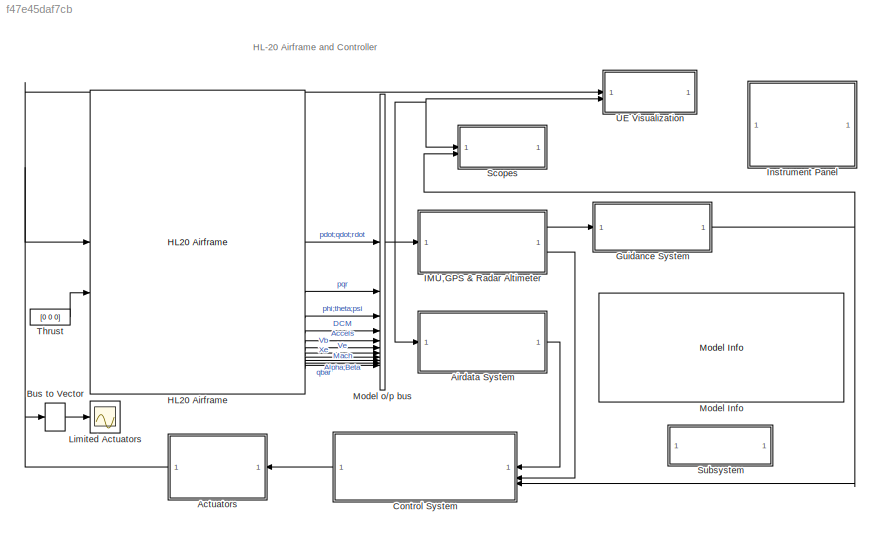
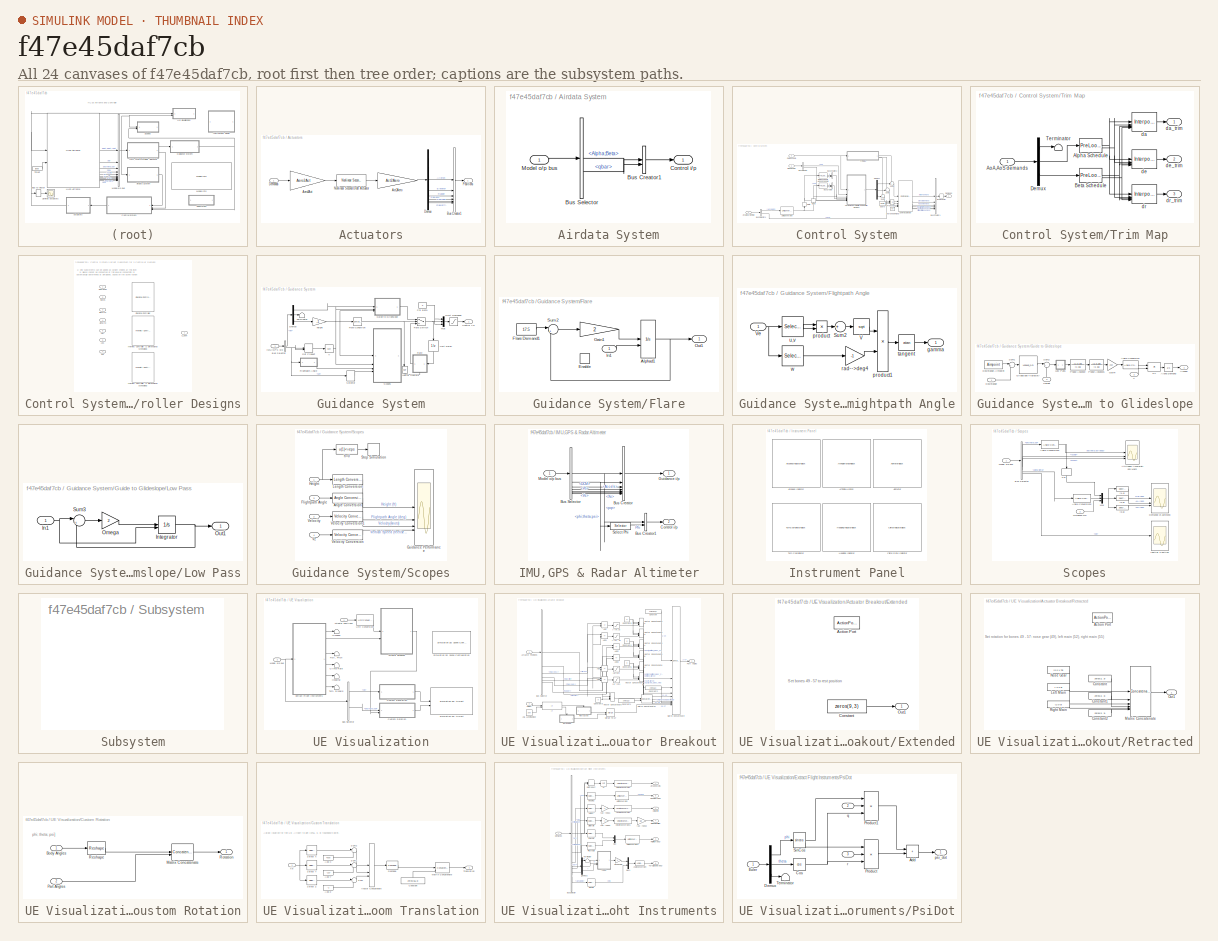
[diagram: thumbnail index - all 24 canvases of the model, root first then tree order]
MODEL slx_f47e45daf7cb
KIND model
CONFIG AbsTol = auto
CONFIG EnableMultiTasking = on
CONFIG FixedStep = auto
CONFIG MaxStep = auto
CONFIG MinStep = auto
CONFIG PreLoadFcn = aeroblk_init_HL20
CONFIG RelTol = 1e-3
CONFIG SampleTimeConstraint = Unconstrained
CONFIG SolverName = ode45
CONFIG StartTime = 0.0
CONFIG StopTime = 70
BLOCK [SubSystem] Actuators
BLOCK [Gain] Actuators/Act2Aero
  Gain = Act2Aero
  Multiplication = Matrix(K*u)
  OutDataTypeStr = Inherit: Same as input
  ParamDataTypeStr = Inherit: Same as input
  SaturateOnIntegerOverflow = on
BLOCK [Gain] Actuators/Aero2Act
  Gain = Aero2Act
  Multiplication = Matrix(K*u)
  OutDataTypeStr = Inherit: Same as input
  ParamDataTypeStr = Inherit: Same as input
  SaturateOnIntegerOverflow = on
BLOCK [BusCreator] Actuators/Bus Creator1
  DisplayOption = bar
  InheritFromInputs = on
  Inputs = 6
BLOCK [Inport] Actuators/Demands
BLOCK [Demux] Actuators/Demux
  DisplayOption = none
  Outputs = 6
BLOCK [Reference] Actuators/Nonlinear Second-Order Actuator  REF=aerolibactuator/Nonlinear Second-Order Actuator
  SourceBlock = aerolibactuator/Nonlinear Second-Order Actuator
  SourceType = NonlinearSecondOrderActuator
BLOCK [Outport] Actuators/Positions
  VectorParamsAs1DForOutWhenUnconnected = off
BLOCK [SubSystem] Airdata System
BLOCK [BusCreator] Airdata System/Bus Creator1
  DisplayOption = bar
  InheritFromInputs = on
  Inputs = 2
BLOCK [BusSelector] Airdata System/Bus Selector
  OutputSignals = Alpha;Beta,qbar
BLOCK [Outport] Airdata System/Control i//p
  VectorParamsAs1DForOutWhenUnconnected = off
BLOCK [Inport] Airdata System/Model o//p bus
BLOCK [BusToVector] Bus to Vector
BLOCK [SubSystem] Control System
BLOCK [Constant] Control System/Airbrake demand
  Value = 0.0
BLOCK [Inport] Control System/Airdata System o//p
BLOCK [Selector] Control System/Alpha
  IndexMode = Zero-based
  IndexOptions = Index vector (dialog)
  Indices = 0
  InputPortWidth = 2
  NameLocation = left
  OutputSizes = 1
BLOCK [PreLookup] Control System/Alpha Schedule
  BeginIndexSearchUsingPreviousIndexResult = on
  BreakpointsData = a_vec
  ExtrapMethod = Linear
  InputPortMap = u0
BLOCK [Selector] Control System/Beta
  IndexMode = Zero-based
  IndexOptions = Index vector (dialog)
  Indices = 1
  InputPortWidth = 2
  NameLocation = left
  OutputSizes = 1
BLOCK [PreLookup] Control System/Beta Schedule
  BeginIndexSearchUsingPreviousIndexResult = on
  BreakpointsData = b_vec
  ExtrapMethod = Linear
  InputPortMap = u0
BLOCK [BusCreator] Control System/Bus Creator
  DisplayOption = bar
  InheritFromInputs = on
  Inputs = 2
BLOCK [BusCreator] Control System/Bus Creator1
  DisplayOption = bar
  InheritFromInputs = on
  Inputs = 6
BLOCK [BusCreator] Control System/Bus Creator2
  DisplayOption = bar
  InheritFromInputs = on
  Inputs = 2
BLOCK [BusSelector] Control System/Bus Selector
  OutputSignals = pqr,Phi
BLOCK [BusSelector] Control System/Bus Selector1
  OutputSignals = Alpha;Beta,qbar
BLOCK [BusToVector] Control System/Bus to Vector
BLOCK [Reference] Control System/Controls Selector  REF=aeroblk_lib_HL20/Controls
Selector
  SourceBlock = aeroblk_lib_HL20/Controls\nSelector
  SourceType = SubSystem
BLOCK [Outport] Control System/Demands
  VectorParamsAs1DForOutWhenUnconnected = off
BLOCK [Demux] Control System/Demux1
  DisplayOption = none
  Outputs = 3
BLOCK [Inport] Control System/Guidance o//p
  Port = 3
BLOCK [Inport] Control System/IMU&GPS o//p
  Port = 2
BLOCK [Product] Control System/Product1
  InputSameDT = on
  Inputs = */
  OutDataTypeStr = Inherit: Same as first input
  SaturateOnIntegerOverflow = on
BLOCK [Sum] Control System/Sum1
  InputSameDT = on
  Inputs = ++|
  OutDataTypeStr = Inherit: Same as first input
  SaturateOnIntegerOverflow = on
BLOCK [Sum] Control System/Sum2
  InputSameDT = on
  Inputs = ++|
  OutDataTypeStr = Inherit: Same as first input
  SaturateOnIntegerOverflow = on
BLOCK [Sum] Control System/Sum3
  InputSameDT = on
  Inputs = ++|
  OutDataTypeStr = Inherit: Same as first input
  SaturateOnIntegerOverflow = on
BLOCK [SubSystem] Control System/Trim Map
BLOCK [PreLookup] Control System/Trim Map/Alpha Schedule
  BeginIndexSearchUsingPreviousIndexResult = on
  BreakpointsData = a_vec
  ExtrapMethod = Linear
  InputPortMap = u0
BLOCK [Inport] Control System/Trim Map/AoA,AoS demands
BLOCK [PreLookup] Control System/Trim Map/Beta Schedule
  BeginIndexSearchUsingPreviousIndexResult = on
  BreakpointsData = b_vec
  ExtrapMethod = Linear
  InputPortMap = u0
BLOCK [Demux] Control System/Trim Map/Demux
  DisplayOption = none
  Outputs = 3
BLOCK [Terminator] Control System/Trim Map/Terminator
BLOCK [Interpolation_n-D] Control System/Trim Map/da
  InputPortMap = u0,u1,u2,u3
  RemoveProtectionIndex = on
  SaturateOnIntegerOverflow = on
  Table = squeeze(U_trim_matrix(1,:,:))
BLOCK [Outport] Control System/Trim Map/da_trim
  VectorParamsAs1DForOutWhenUnconnected = off
BLOCK [Interpolation_n-D] Control System/Trim Map/de
  InputPortMap = u0,u1,u2,u3
  RemoveProtectionIndex = on
  SaturateOnIntegerOverflow = on
  Table = squeeze(U_trim_matrix(2,:,:))
BLOCK [Outport] Control System/Trim Map/de_trim
  Port = 2
  VectorParamsAs1DForOutWhenUnconnected = off
BLOCK [Interpolation_n-D] Control System/Trim Map/dr
  InputPortMap = u0,u1,u2,u3
  RemoveProtectionIndex = on
  SaturateOnIntegerOverflow = on
  Table = squeeze(U_trim_matrix(3,:,:))
BLOCK [Outport] Control System/Trim Map/dr_trim
  Port = 3
  VectorParamsAs1DForOutWhenUnconnected = off
BLOCK [UnitConversion] Control System/Unit Conversion
BLOCK [SubSystem] Control System/Variant Subsystem for 3 Controller Designs
  LabelModeActiveChoice = ClassicalController
  Variant = on
  VariantControlMode = label
BLOCK [Inport] Control System/Variant Subsystem for 3 Controller Designs/Alpha-sc
  Port = 4
BLOCK [Inport] Control System/Variant Subsystem for 3 Controller Designs/AoA
  Port = 5
BLOCK [Inport] Control System/Variant Subsystem for 3 Controller Designs/AoS
  Port = 6
BLOCK [Inport] Control System/Variant Subsystem for 3 Controller Designs/Beta-sc
  Port = 3
BLOCK [Reference] Control System/Variant Subsystem for 3 Controller Designs/Classical Controller  REF=aeroblk_lib_HL20/Classical Controller
  SourceBlock = aeroblk_lib_HL20/Classical Controller
  SourceType = SubSystem
BLOCK [Inport] Control System/Variant Subsystem for 3 Controller Designs/Demands
BLOCK [Reference] Control System/Variant Subsystem for 3 Controller Designs/H-infinity Controller [1 dimensional scheduling]  REF=aeroblk_lib_HL20/H-infinity Controller
[1 dimensional scheduling]
  SourceBlock = aeroblk_lib_HL20/H-infinity Controller\n[1 dimensional scheduling]
  SourceType = SubSystem
BLOCK [Reference] Control System/Variant Subsystem for 3 Controller Designs/H-infinity Controller [2 dimensional scheduling]  REF=aeroblk_lib_HL20/H-infinity Controller
[2 dimensional scheduling]
  SourceBlock = aeroblk_lib_HL20/H-infinity Controller\n[2 dimensional scheduling]
  SourceType = SubSystem
BLOCK [Inport] Control System/Variant Subsystem for 3 Controller Designs/Phi
  Port = 7
BLOCK [Inport] Control System/Variant Subsystem for 3 Controller Designs/Rates
  Port = 2
BLOCK [Outport] Control System/Variant Subsystem for 3 Controller Designs/u_dem
  VectorParamsAs1DForOutWhenUnconnected = off
BLOCK [Constant] Control System/qbar0
  Value = qbar0
BLOCK [SubSystem] Guidance System
BLOCK [BusSelector] Guidance System/Bus Selector
  OutputSignals = Xe,Ve
BLOCK [Outport] Guidance System/Control i//p
  VectorParamsAs1DForOutWhenUnconnected = off
BLOCK [Demux] Guidance System/Demux
  DisplayOption = none
  Outputs = 3
BLOCK [DotProduct] Guidance System/Dot Product
  InputSameDT = off
  OutDataTypeStr = Inherit: Inherit via internal rule
  SaturateOnIntegerOverflow = on
BLOCK [SubSystem] Guidance System/Flare
  NameLocation = top
  ShowPortLabels = none
  TreatAsAtomicUnit = on
BLOCK [Reference] Guidance System/Flare Condition  REF=simulink/Logic and Bit
Operations/Compare
To Constant
  SourceBlock = simulink/Logic and Bit\nOperations/Compare\nTo Constant
  SourceType = Compare To Constant
BLOCK [Switch] Guidance System/Flare Switch
  Threshold = 0.5
BLOCK [Integrator] Guidance System/Flare/Alphad1
  InitialConditionSource = external
BLOCK [EnablePort] Guidance System/Flare/Enable
  StatesWhenEnabling = reset
BLOCK [Constant] Guidance System/Flare/Flare Demand1
  Value = 17.5
BLOCK [Gain] Guidance System/Flare/Gain1
  Gain = 2
  OutDataTypeStr = Inherit: Same as input
  ParamDataTypeStr = Inherit: Same as input
  SaturateOnIntegerOverflow = on
BLOCK [Inport] Guidance System/Flare/In1
BLOCK [Outport] Guidance System/Flare/Out1
  InitialOutput = [0]
  VectorParamsAs1DForOutWhenUnconnected = off
BLOCK [Sum] Guidance System/Flare/Sum2
  InputSameDT = on
  Inputs = |+-
  OutDataTypeStr = Inherit: Same as first input
  SaturateOnIntegerOverflow = on
BLOCK [SubSystem] Guidance System/Flightpath Angle
BLOCK [Sum] Guidance System/Flightpath Angle/Sum2
  InputSameDT = on
  Inputs = +
  OutDataTypeStr = Inherit: Same as first input
  SaturateOnIntegerOverflow = on
BLOCK [Sqrt] Guidance System/Flightpath Angle/V
BLOCK [Inport] Guidance System/Flightpath Angle/Ve
  NameLocation = top
BLOCK [Outport] Guidance System/Flightpath Angle/gamma
  VectorParamsAs1DForOutWhenUnconnected = off
BLOCK [Product] Guidance System/Flightpath Angle/product
  InputSameDT = on
  OutDataTypeStr = Inherit: Same as first input
  SaturateOnIntegerOverflow = on
BLOCK [Product] Guidance System/Flightpath Angle/product1
  InputSameDT = on
  Inputs = /*
  OutDataTypeStr = Inherit: Same as first input
  SaturateOnIntegerOverflow = on
BLOCK [Gain] Guidance System/Flightpath Angle/rad-->deg4
  Gain = -1
  NameLocation = top
  OutDataTypeStr = Inherit: Same as input
  ParamDataTypeStr = Inherit: Same as input
  SaturateOnIntegerOverflow = on
BLOCK [Trigonometry] Guidance System/Flightpath Angle/tangent
  Operator = atan
BLOCK [Selector] Guidance System/Flightpath Angle/u,v
  IndexMode = Zero-based
  IndexOptions = Index vector (dialog)
  Indices = [0 1]
  InputPortWidth = 3
  OutputSizes = 1
BLOCK [Selector] Guidance System/Flightpath Angle/w
  IndexMode = Zero-based
  IndexOptions = Index vector (dialog)
  Indices = 2
  InputPortWidth = 3
  OutputSizes = 1
BLOCK [SubSystem] Guidance System/Guide to Glideslope
BLOCK [Product] Guidance System/Guide to Glideslope/1//V
  InputSameDT = on
  Inputs = */
  OutDataTypeStr = Inherit: Same as first input
  SaturateOnIntegerOverflow = on
BLOCK [Integrator] Guidance System/Guide to Glideslope/Alpha Demand
  InitialCondition = alpha0*180/pi
BLOCK [Outport] Guidance System/Guide to Glideslope/Alphad
  VectorParamsAs1DForOutWhenUnconnected = off
BLOCK [Reference] Guidance System/Guide to Glideslope/Angle Conversion  REF=aerolibconvert2/Angle Conversion
  SourceBlock = aerolibconvert2/Angle Conversion
  SourceType = Angle Conversion
BLOCK [Inport] Guidance System/Guide to Glideslope/Downrange
BLOCK [Constant] Guidance System/Guide to Glideslope/Downrange Aimpoint
  Value = Aimpoint
BLOCK [Gain] Guidance System/Guide to Glideslope/Gain4
  Gain = 210
  OutDataTypeStr = Inherit: Same as input
  ParamDataTypeStr = Inherit: Same as input
  SaturateOnIntegerOverflow = on
BLOCK [Lookup_n-D] Guidance System/Guide to Glideslope/Glideslope Trajectory
  BreakpointsForDimension1 = Xglide
  InputPortMap = u0
  LookupTableObject = ''
  NumberOfTableDimensions = 1
  SaturateOnIntegerOverflow = on
  Table = hglide
BLOCK [Inport] Guidance System/Guide to Glideslope/Height
  Port = 3
BLOCK [SubSystem] Guidance System/Guide to Glideslope/Low Pass
  ShowPortLabels = none
BLOCK [Inport] Guidance System/Guide to Glideslope/Low Pass/In1
BLOCK [Integrator] Guidance System/Guide to Glideslope/Low Pass/Integrator
  InitialConditionSource = external
BLOCK [Gain] Guidance System/Guide to Glideslope/Low Pass/Omega
  Gain = 2
  OutDataTypeStr = Inherit: Same as input
  ParamDataTypeStr = Inherit: Same as input
  SaturateOnIntegerOverflow = on
BLOCK [Outport] Guidance System/Guide to Glideslope/Low Pass/Out1
  VectorParamsAs1DForOutWhenUnconnected = off
BLOCK [Sum] Guidance System/Guide to Glideslope/Low Pass/Sum3
  InputSameDT = on
  Inputs = |+-
  OutDataTypeStr = Inherit: Same as first input
  SaturateOnIntegerOverflow = on
BLOCK [TransferFcn] Guidance System/Guide to Glideslope/Phase Advance
  Denominator = [1 15]
  Numerator = [1 0.15]
BLOCK [TransferFcn] Guidance System/Guide to Glideslope/Phase Advance1
  Denominator = [1 15]
  Numerator = [1 0.15]
BLOCK [Sum] Guidance System/Guide to Glideslope/Sum1
  InputSameDT = on
  Inputs = |+-
  OutDataTypeStr = Inherit: Same as first input
  SaturateOnIntegerOverflow = on
BLOCK [Sum] Guidance System/Guide to Glideslope/Sum2
  InputSameDT = on
  Inputs = |+-
  OutDataTypeStr = Inherit: Same as first input
  SaturateOnIntegerOverflow = on
BLOCK [Inport] Guidance System/Guide to Glideslope/V
  Port = 2
BLOCK [Inport] Guidance System/IMU//GPS o//p
BLOCK [Saturate] Guidance System/Limit Demands
  LowerLimit = [-20 -10 -5]
  UpperLimit = [20 25 5]
BLOCK [Logic] Guidance System/Logical Operator
  Operator = NOT
BLOCK [Mux] Guidance System/Mux
  DisplayOption = bar
  Inputs = 3
BLOCK [Constant] Guidance System/Phi Beta
  Value = 0
BLOCK [SubSystem] Guidance System/Scopes
BLOCK [Reference] Guidance System/Scopes/Angle Conversion  REF=aerolibconvert2/Angle Conversion
  SourceBlock = aerolibconvert2/Angle Conversion
  SourceType = Angle Conversion
BLOCK [Inport] Guidance System/Scopes/Flightpath Angle
  Port = 3
BLOCK [Scope] Guidance System/Scopes/Guidance Performance
  Floating = off
  NumInputPorts = 4
  ScopeSpecificationString = Simulink.scopes.TimeScopeBlockCfg('CurrentConfiguration', extmgr.ConfigurationSet(extmgr.Configuration('Core','General UI',true),extmgr.Configuration('Core','Source UI',true),extmgr.Configuration('Sources','WiredSimulink',true,'DataLoggingVariableName','ScopeData6','DataLoggingDecimation','1','DataLoggingSaveFormat','StructureWithTime'),extmgr.Configuration('Visuals','Time Domain',true,'Serialized...<+3754ch>
BLOCK [Inport] Guidance System/Scopes/Height
BLOCK [Reference] Guidance System/Scopes/Length Conversion  REF=aerolibconvert2/Length Conversion
  SourceBlock = aerolibconvert2/Length Conversion
  SourceType = Length Conversion
BLOCK [Stop] Guidance System/Scopes/Stop Simulation
BLOCK [Inport] Guidance System/Scopes/Velocity
  Port = 2
BLOCK [Reference] Guidance System/Scopes/Velocity Conversion  REF=aerolibconvert2/Velocity Conversion
  SourceBlock = aerolibconvert2/Velocity Conversion
  SourceType = Velocity Conversion
BLOCK [Reference] Guidance System/Scopes/Velocity Conversion1  REF=aerolibconvert2/Velocity Conversion
  SourceBlock = aerolibconvert2/Velocity Conversion
  SourceType = Velocity Conversion
BLOCK [Inport] Guidance System/Scopes/Vz
  Port = 4
BLOCK [Fcn] Guidance System/Scopes/h=0
  Expr = u(1)<=eps
BLOCK [Selector] Guidance System/Selector
  IndexMode = Zero-based
  IndexOptions = Index vector (dialog)
  Indices = 2
  InputPortWidth = 3
  OutputSizes = 1
BLOCK [Terminator] Guidance System/Terminator
BLOCK [UnitDelay] Guidance System/Unit Delay
  HasFrameUpgradeWarning = on
  SampleTime = 0.1
BLOCK [Sqrt] Guidance System/V
BLOCK [Gain] Guidance System/height
  Gain = -1
  OutDataTypeStr = Inherit: Same as input
  ParamDataTypeStr = Inherit: Same as input
  SaturateOnIntegerOverflow = on
BLOCK [Reference] HL20 Airframe  REF=aeroblk_lib_HL20/HL20
Airframe
  SourceBlock = aeroblk_lib_HL20/HL20\nAirframe
BLOCK [SubSystem] IMU,GPS & Radar Altimeter
BLOCK [BusCreator] IMU,GPS & Radar Altimeter/Bus Creator
  DisplayOption = bar
  InheritFromInputs = on
  Inputs = 7
BLOCK [BusCreator] IMU,GPS & Radar Altimeter/Bus Creator1
  DisplayOption = bar
  InheritFromInputs = on
  Inputs = 2
BLOCK [BusSelector] IMU,GPS & Radar Altimeter/Bus Selector
  OutputSignals = pqr,phi;theta;psi,DCM,Accels,Vb,Ve,Xe
BLOCK [Outport] IMU,GPS & Radar Altimeter/Control i//p
  Port = 2
  VectorParamsAs1DForOutWhenUnconnected = off
BLOCK [Outport] IMU,GPS & Radar Altimeter/Guidance i//p
  VectorParamsAs1DForOutWhenUnconnected = off
BLOCK [Inport] IMU,GPS & Radar Altimeter/Model o//p bus
BLOCK [Selector] IMU,GPS & Radar Altimeter/Select Phi
  IndexMode = Zero-based
  IndexOptions = Index vector (dialog)
  Indices = 0
  InputPortWidth = 3
  OutputSizes = 1
BLOCK [SubSystem] Instrument Panel
BLOCK [AirspeedIndicatorBlock] Instrument Panel/Airspeed Indicator
  LabelPosition = Hide
  ScaleMax = 450
  ScaleMin = 0
BLOCK [AltimeterBlock] Instrument Panel/Altimeter
  LabelPosition = Hide
BLOCK [ArtificialHorizonBlock] Instrument Panel/Artificial Horizon
  LabelPosition = Hide
BLOCK [ClimbIndicatorBlock] Instrument Panel/Climb Rate Indicator
  LabelPosition = Hide
  ScaleMax = 16000
BLOCK [HeadingIndicatorBlock] Instrument Panel/Heading Indicator
  LabelPosition = Hide
BLOCK [TurnCoordinatorBlock] Instrument Panel/Turn Coordinator
  LabelPosition = Hide
BLOCK [Scope] Limited Actuators
  Floating = off
  NumInputPorts = 1
  ScopeSpecificationString = Simulink.scopes.TimeScopeBlockCfg('CurrentConfiguration', extmgr.ConfigurationSet(extmgr.Configuration('Core','General UI',true,'MessageLogAutoOpenMode','for warn/fail messages','ShowCloseAll',true,'ShowBringAllForward',true),extmgr.Configuration('Core','Source UI',true,'PlaybackToolbar',true),extmgr.Configuration('Sources','WiredSimulink',true,'PointsPerSignal',50000,'DataLoggingVariableName','Sc...<+2029ch>
BLOCK [Reference] Model Info  REF=simulink/Model-Wide
Utilities/Model Info
  SourceBlock = simulink/Model-Wide\nUtilities/Model Info
  SourceType = CMBlock
BLOCK [BusCreator] Model o//p bus
  DisplayOption = bar
  InheritFromInputs = on
  Inputs = 11
BLOCK [SubSystem] Scopes
BLOCK [Reference] Scopes/Angle Conversion1  REF=aerolibconvert2/Angle Conversion
  SourceBlock = aerolibconvert2/Angle Conversion
  SourceType = Angle Conversion
BLOCK [Reference] Scopes/Angle Conversion2  REF=aerolibconvert2/Angle Conversion
  SourceBlock = aerolibconvert2/Angle Conversion
  SourceType = Angle Conversion
BLOCK [Scope] Scopes/Attitudes Accelerations Mach
  Floating = off
  NumInputPorts = 3
  ScopeSpecificationString = Simulink.scopes.TimeScopeBlockCfg('CurrentConfiguration', extmgr.ConfigurationSet(extmgr.Configuration('Core','General UI',true,'MessageLogAutoOpenMode','for warn/fail messages','ShowCloseAll',true,'ShowBringAllForward',true),extmgr.Configuration('Core','Source UI',true,'PlaybackToolbar',true),extmgr.Configuration('Sources','WiredSimulink',true,'PointsPerSignal',50000,'DataLoggingVariableName','Sc...<+3433ch>
BLOCK [BusSelector] Scopes/Bus Selector
  OutputSignals = phi;theta;psi,Accels,Mach,Alpha;Beta,Xe
BLOCK [Scope] Scopes/Demands vs achieved
  Floating = off
  NumInputPorts = 3
  ScopeSpecificationString = Simulink.scopes.TimeScopeBlockCfg('CurrentConfiguration', extmgr.ConfigurationSet(extmgr.Configuration('Core','General UI',true,'MessageLogAutoOpenMode','for warn/fail messages','ShowCloseAll',true,'ShowBringAllForward',true),extmgr.Configuration('Core','Source UI',true,'PlaybackToolbar',true),extmgr.Configuration('Sources','WiredSimulink',true,'PointsPerSignal',50000,'DataLoggingDecimateData',tru...<+3389ch>
BLOCK [Inport] Scopes/Guidance o//p
  Port = 2
BLOCK [Scope] Scopes/Inertial Position
  Floating = off
  NumInputPorts = 1
  ScopeSpecificationString = Simulink.scopes.TimeScopeBlockCfg('CurrentConfiguration', extmgr.ConfigurationSet(extmgr.Configuration('Core','General UI',true,'MessageLogAutoOpenMode','for warn/fail messages','ShowCloseAll',true,'ShowBringAllForward',true),extmgr.Configuration('Core','Source UI',true,'PlaybackToolbar',true),extmgr.Configuration('Sources','WiredSimulink',true,'PointsPerSignal',50000,'DataLoggingVariableName','Sc...<+2056ch>
BLOCK [Inport] Scopes/Model o//p bus
BLOCK [Mux] Scopes/Mux
  DisplayOption = bar
  Inputs = [1,2,3]
BLOCK [Selector] Scopes/Phi
  IndexMode = Zero-based
  IndexOptions = Index vector (dialog)
  Indices = 0
  InputPortWidth = 3
  NameLocation = left
  OutputSizes = 1
BLOCK [Selector] Scopes/[1,4]
  IndexMode = Zero-based
  IndexOptions = Index vector (dialog)
  Indices = [0 3]
  InputPortWidth = 6
  OutputSizes = 1
BLOCK [Selector] Scopes/[2,5]
  IndexMode = Zero-based
  IndexOptions = Index vector (dialog)
  Indices = [1 4]
  InputPortWidth = 6
  OutputSizes = 1
BLOCK [Selector] Scopes/[3,6]
  IndexMode = Zero-based
  IndexOptions = Index vector (dialog)
  Indices = [2 5]
  InputPortWidth = 6
  OutputSizes = 1
BLOCK [SubSystem] Subsystem
  OpenFcn = aeroblk_lib_HL20
BLOCK [Constant] Thrust
  Value = [0 0 0]
BLOCK [SubSystem] UE Visualization
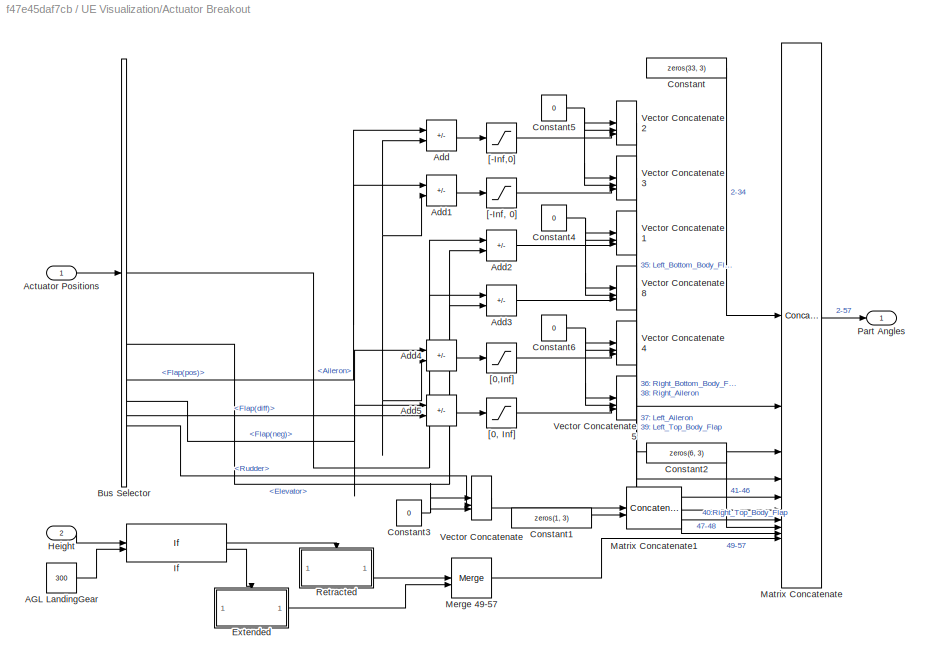
BLOCK [SubSystem] UE Visualization/Actuator Breakout
BLOCK [Constant] UE Visualization/Actuator Breakout/AGL LandingGear
  Value = 300
BLOCK [Inport] UE Visualization/Actuator Breakout/Actuator Positions
  Unit = rad
BLOCK [Sum] UE Visualization/Actuator Breakout/Add
  IconShape = rectangular
  Inputs = --
BLOCK [Sum] UE Visualization/Actuator Breakout/Add1
  IconShape = rectangular
  Inputs = -+
BLOCK [Sum] UE Visualization/Actuator Breakout/Add2
  IconShape = rectangular
  Inputs = --
BLOCK [Sum] UE Visualization/Actuator Breakout/Add3
  IconShape = rectangular
  Inputs = +-
BLOCK [Sum] UE Visualization/Actuator Breakout/Add4
  IconShape = rectangular
  Inputs = --
BLOCK [Sum] UE Visualization/Actuator Breakout/Add5
  IconShape = rectangular
  Inputs = -+
BLOCK [BusSelector] UE Visualization/Actuator Breakout/Bus Selector
  OutputSignals = Aileron,Elevator,Flap(pos),Flap(neg),Flap(diff),Rudder
BLOCK [Constant] UE Visualization/Actuator Breakout/Constant
  Value = zeros(33, 3)
  VectorParams1D = off
BLOCK [Constant] UE Visualization/Actuator Breakout/Constant1
  Value = zeros(1, 3)
  VectorParams1D = off
BLOCK [Constant] UE Visualization/Actuator Breakout/Constant2
  Value = zeros(6, 3)
  VectorParams1D = off
BLOCK [Constant] UE Visualization/Actuator Breakout/Constant3
  Value = 0
BLOCK [Constant] UE Visualization/Actuator Breakout/Constant4
  Value = 0
BLOCK [Constant] UE Visualization/Actuator Breakout/Constant5
  Value = 0
BLOCK [Constant] UE Visualization/Actuator Breakout/Constant6
  Value = 0
BLOCK [SubSystem] UE Visualization/Actuator Breakout/Extended
  TreatAsAtomicUnit = on
BLOCK [ActionPort] UE Visualization/Actuator Breakout/Extended/Action Port
  ActionPortLabel = else
BLOCK [Constant] UE Visualization/Actuator Breakout/Extended/Constant
  Value = zeros(9, 3)
  VectorParams1D = off
BLOCK [Outport] UE Visualization/Actuator Breakout/Extended/Out1
BLOCK [Inport] UE Visualization/Actuator Breakout/Height
  Port = 2
BLOCK [If] UE Visualization/Actuator Breakout/If
  IfExpression = u1 > u2
  NumInputs = 2
BLOCK [Concatenate] UE Visualization/Actuator Breakout/Matrix Concatenate
  Mode = Multidimensional array
  NumInputs = 10
BLOCK [Concatenate] UE Visualization/Actuator Breakout/Matrix Concatenate1
  Mode = Multidimensional array
BLOCK [Merge] UE Visualization/Actuator Breakout/Merge 49-57
  InitialOutput = [0 0 1.75;0 0 0;0 0 0;-2 0 0;0 0 0;0 0 0;2 0 0;0 0 0;0 0 0]
BLOCK [Outport] UE Visualization/Actuator Breakout/Part Angles
BLOCK [SubSystem] UE Visualization/Actuator Breakout/Retracted
  TreatAsAtomicUnit = on
BLOCK [ActionPort] UE Visualization/Actuator Breakout/Retracted/Action Port
  ActionPortLabel = if(u1 > u2)
BLOCK [Constant] UE Visualization/Actuator Breakout/Retracted/Constant
  Value = zeros(2, 3)
  VectorParams1D = off
BLOCK [Constant] UE Visualization/Actuator Breakout/Retracted/Constant1
  Value = zeros(2, 3)
  VectorParams1D = off
BLOCK [Constant] UE Visualization/Actuator Breakout/Retracted/Constant2
  Value = zeros(2, 3)
  VectorParams1D = off
BLOCK [Constant] UE Visualization/Actuator Breakout/Retracted/Left Main
  Value = [-2 0 0]
  VectorParams1D = off
BLOCK [Concatenate] UE Visualization/Actuator Breakout/Retracted/Matrix Concatenate
  Mode = Multidimensional array
  NumInputs = 6
BLOCK [Constant] UE Visualization/Actuator Breakout/Retracted/Nose Gear
  Value = [0 0 1.75]
  VectorParams1D = off
BLOCK [Outport] UE Visualization/Actuator Breakout/Retracted/Out1
BLOCK [Constant] UE Visualization/Actuator Breakout/Retracted/Right Main
  Value = [2 0 0]
  VectorParams1D = off
BLOCK [Concatenate] UE Visualization/Actuator Breakout/Vector Concatenate
  ConcatenateDimension = 2
  Mode = Multidimensional array
  NumInputs = 3
BLOCK [Concatenate] UE Visualization/Actuator Breakout/Vector Concatenate1
  ConcatenateDimension = 2
  Mode = Multidimensional array
  NumInputs = 3
BLOCK [Concatenate] UE Visualization/Actuator Breakout/Vector Concatenate2
  ConcatenateDimension = 2
  Mode = Multidimensional array
  NumInputs = 3
BLOCK [Concatenate] UE Visualization/Actuator Breakout/Vector Concatenate3
  ConcatenateDimension = 2
  Mode = Multidimensional array
  NumInputs = 3
BLOCK [Concatenate] UE Visualization/Actuator Breakout/Vector Concatenate4
  ConcatenateDimension = 2
  Mode = Multidimensional array
  NumInputs = 3
BLOCK [Concatenate] UE Visualization/Actuator Breakout/Vector Concatenate5
  ConcatenateDimension = 2
  Mode = Multidimensional array
  NumInputs = 3
BLOCK [Concatenate] UE Visualization/Actuator Breakout/Vector Concatenate8
  ConcatenateDimension = 2
  Mode = Multidimensional array
  NumInputs = 3
BLOCK [Saturate] UE Visualization/Actuator Breakout/[-Inf, 0]
  LowerLimit = -Inf
  UpperLimit = 0
BLOCK [Saturate] UE Visualization/Actuator Breakout/[-Inf,0]
  LowerLimit = -Inf
  UpperLimit = 0
BLOCK [Saturate] UE Visualization/Actuator Breakout/[0, Inf]
  LowerLimit = 0
  UpperLimit = Inf
BLOCK [Saturate] UE Visualization/Actuator Breakout/[0,Inf]
  LowerLimit = 0
  UpperLimit = Inf
BLOCK [Inport] UE Visualization/Actuator Positions
  Unit = deg
BLOCK [Terminator] UE Visualization/Airspeed
BLOCK [BusSelector] UE Visualization/Bus Selector
  OutputSignals = Xe,phi;theta;psi
BLOCK [Terminator] UE Visualization/Climb Rate
BLOCK [SubSystem] UE Visualization/Custom Rotation
BLOCK [Inport] UE Visualization/Custom Rotation/Body Angles
  PortDimensions = [3, 1]
BLOCK [Concatenate] UE Visualization/Custom Rotation/Matrix Concatenate
  Mode = Multidimensional array
BLOCK [Inport] UE Visualization/Custom Rotation/Part Angles
  Port = 2
BLOCK [Reshape] UE Visualization/Custom Rotation/Reshape
  OutputDimensionality = Row vector (2-D)
BLOCK [Outport] UE Visualization/Custom Rotation/Rotation
BLOCK [SubSystem] UE Visualization/Custom Translation
BLOCK [Constant] UE Visualization/Custom Translation/Add X
  Value = 4500
BLOCK [Constant] UE Visualization/Custom Translation/Add Y
  Value = -22.7
BLOCK [Constant] UE Visualization/Custom Translation/Add Z
  Value = -2
BLOCK [Constant] UE Visualization/Custom Translation/Constant
  NameLocation = right
  Value = zeros(56,3)
BLOCK [Concatenate] UE Visualization/Custom Translation/Matrix Concatenate
  Mode = Multidimensional array
BLOCK [Reshape] UE Visualization/Custom Translation/Reshape
  OutputDimensionality = Row vector (2-D)
BLOCK [Selector] UE Visualization/Custom Translation/Select X
  IndexOptions = Index vector (dialog)
  Indices = 1
  InputPortWidth = 3
  OutputSizes = 1
BLOCK [Selector] UE Visualization/Custom Translation/Select Y
  IndexOptions = Index vector (dialog)
  Indices = 2
  InputPortWidth = 3
  OutputSizes = 1
BLOCK [Selector] UE Visualization/Custom Translation/Select Z
  IndexOptions = Index vector (dialog)
  Indices = 3
  InputPortWidth = 3
  OutputSizes = 1
BLOCK [Sum] UE Visualization/Custom Translation/Sum
  Inputs = |++
BLOCK [Sum] UE Visualization/Custom Translation/Sum1
  Inputs = |++
BLOCK [Sum] UE Visualization/Custom Translation/Sum2
  Inputs = |++
BLOCK [Outport] UE Visualization/Custom Translation/Translation
BLOCK [Concatenate] UE Visualization/Custom Translation/Vector Concatenate
  NumInputs = 3
BLOCK [Inport] UE Visualization/Custom Translation/Xe
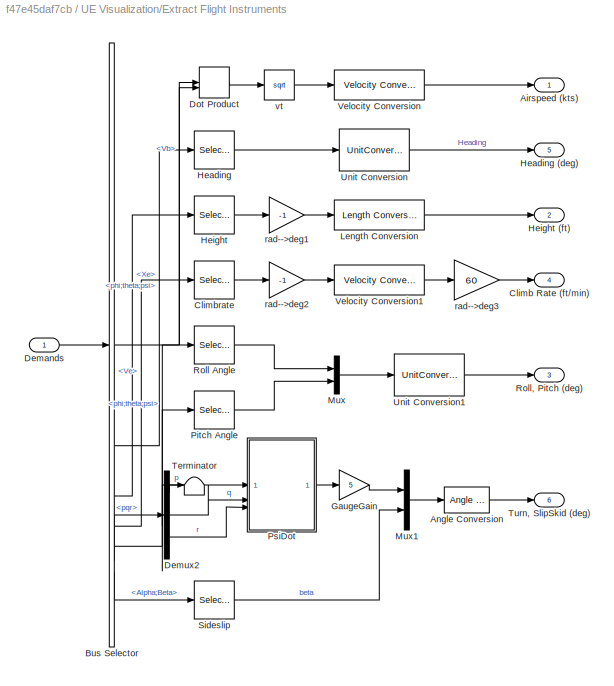
BLOCK [SubSystem] UE Visualization/Extract Flight Instruments
BLOCK [Outport] UE Visualization/Extract Flight Instruments/Airspeed (kts)
  Unit = kn
  VectorParamsAs1DForOutWhenUnconnected = off
BLOCK [Reference] UE Visualization/Extract Flight Instruments/Angle Conversion  REF=aerolibconvert2/Angle Conversion
  SourceBlock = aerolibconvert2/Angle Conversion
  SourceType = Angle Conversion
BLOCK [BusSelector] UE Visualization/Extract Flight Instruments/Bus Selector
  OutputSignals = Vb,phi;theta;psi,Xe,Ve,phi;theta;psi,pqr,Alpha;Beta
BLOCK [Outport] UE Visualization/Extract Flight Instruments/Climb Rate (ft//min)
  Port = 4
  Unit = ft/min
  VectorParamsAs1DForOutWhenUnconnected = off
BLOCK [Selector] UE Visualization/Extract Flight Instruments/Climbrate
  IndexMode = Zero-based
  IndexOptions = Index vector (dialog)
  Indices = 2
  InputPortWidth = 3
  OutputSizes = 1
BLOCK [Inport] UE Visualization/Extract Flight Instruments/Demands
BLOCK [Demux] UE Visualization/Extract Flight Instruments/Demux2
  Outputs = 3
BLOCK [DotProduct] UE Visualization/Extract Flight Instruments/Dot Product
  InputSameDT = off
  OutDataTypeStr = Inherit: Inherit via internal rule
  SaturateOnIntegerOverflow = on
BLOCK [Gain] UE Visualization/Extract Flight Instruments/GaugeGain
  Gain = 5
BLOCK [Selector] UE Visualization/Extract Flight Instruments/Heading
  IndexMode = Zero-based
  IndexOptions = Index vector (dialog)
  Indices = 2
  InputPortWidth = 3
  OutputSizes = 1
BLOCK [Outport] UE Visualization/Extract Flight Instruments/Heading (deg)
  Port = 5
  Unit = deg
  VectorParamsAs1DForOutWhenUnconnected = off
BLOCK [Selector] UE Visualization/Extract Flight Instruments/Height
  IndexMode = Zero-based
  IndexOptions = Index vector (dialog)
  Indices = 2
  InputPortWidth = 3
  OutputSizes = 1
BLOCK [Outport] UE Visualization/Extract Flight Instruments/Height (ft)
  Port = 2
  Unit = ft
  VectorParamsAs1DForOutWhenUnconnected = off
BLOCK [Reference] UE Visualization/Extract Flight Instruments/Length Conversion  REF=aerolibconvert2/Length Conversion
  SourceBlock = aerolibconvert2/Length Conversion
  SourceType = Length Conversion
BLOCK [Mux] UE Visualization/Extract Flight Instruments/Mux
  DisplayOption = bar
  Inputs = 2
BLOCK [Mux] UE Visualization/Extract Flight Instruments/Mux1
  DisplayOption = bar
  Inputs = 2
BLOCK [Selector] UE Visualization/Extract Flight Instruments/Pitch Angle
  IndexMode = Zero-based
  IndexOptions = Index vector (dialog)
  Indices = 1
  InputPortWidth = 3
  OutputSizes = 1
BLOCK [SubSystem] UE Visualization/Extract Flight Instruments/PsiDot
BLOCK [Sum] UE Visualization/Extract Flight Instruments/PsiDot/Add
  IconShape = rectangular
BLOCK [Trigonometry] UE Visualization/Extract Flight Instruments/PsiDot/Cos
  Operator = cos
BLOCK [Demux] UE Visualization/Extract Flight Instruments/PsiDot/Demux
  Outputs = 3
BLOCK [Inport] UE Visualization/Extract Flight Instruments/PsiDot/Euler
BLOCK [Product] UE Visualization/Extract Flight Instruments/PsiDot/Product
  Inputs = **/
BLOCK [Product] UE Visualization/Extract Flight Instruments/PsiDot/Product1
  Inputs = **/
BLOCK [Trigonometry] UE Visualization/Extract Flight Instruments/PsiDot/SinCos
  Operator = sincos
BLOCK [Terminator] UE Visualization/Extract Flight Instruments/PsiDot/Terminator
BLOCK [Outport] UE Visualization/Extract Flight Instruments/PsiDot/psi_dot
BLOCK [Inport] UE Visualization/Extract Flight Instruments/PsiDot/q
  Port = 2
BLOCK [Inport] UE Visualization/Extract Flight Instruments/PsiDot/r
  Port = 3
BLOCK [Selector] UE Visualization/Extract Flight Instruments/Roll Angle
  IndexMode = Zero-based
  IndexOptions = Index vector (dialog)
  Indices = 0
  InputPortWidth = 3
  OutputSizes = 1
BLOCK [Outport] UE Visualization/Extract Flight Instruments/Roll, Pitch (deg)
  Port = 3
  Unit = deg
  VectorParamsAs1DForOutWhenUnconnected = off
BLOCK [Selector] UE Visualization/Extract Flight Instruments/Sideslip
  IndexOptions = Index vector (dialog)
  Indices = 2
  InputPortWidth = 2
  OutputSizes = 1
BLOCK [Terminator] UE Visualization/Extract Flight Instruments/Terminator
BLOCK [Outport] UE Visualization/Extract Flight Instruments/Turn, SlipSkid (deg)
  Port = 6
  Unit = deg
  VectorParamsAs1DForOutWhenUnconnected = off
BLOCK [UnitConversion] UE Visualization/Extract Flight Instruments/Unit Conversion
BLOCK [UnitConversion] UE Visualization/Extract Flight Instruments/Unit Conversion1
BLOCK [Reference] UE Visualization/Extract Flight Instruments/Velocity Conversion  REF=aerolibconvert2/Velocity Conversion
  SourceBlock = aerolibconvert2/Velocity Conversion
  SourceType = Velocity Conversion
BLOCK [Reference] UE Visualization/Extract Flight Instruments/Velocity Conversion1  REF=aerolibconvert2/Velocity Conversion
  SourceBlock = aerolibconvert2/Velocity Conversion
  SourceType = Velocity Conversion
BLOCK [Gain] UE Visualization/Extract Flight Instruments/rad-->deg1
  Gain = -1
  NameLocation = top
  OutDataTypeStr = Inherit: Same as input
  ParamDataTypeStr = Inherit: Same as input
  SaturateOnIntegerOverflow = on
BLOCK [Gain] UE Visualization/Extract Flight Instruments/rad-->deg2
  Gain = -1
  NameLocation = top
  OutDataTypeStr = Inherit: Same as input
  ParamDataTypeStr = Inherit: Same as input
  SaturateOnIntegerOverflow = on
BLOCK [Gain] UE Visualization/Extract Flight Instruments/rad-->deg3
  Gain = 60
  NameLocation = top
  OutDataTypeStr = Inherit: Same as input
  ParamDataTypeStr = Inherit: Same as input
  SaturateOnIntegerOverflow = on
BLOCK [Sqrt] UE Visualization/Extract Flight Instruments/vt
BLOCK [Terminator] UE Visualization/Heading
BLOCK [Inport] UE Visualization/Model o//p bus
  Port = 2
BLOCK [Terminator] UE Visualization/Roll, Pitch
BLOCK [Reference] UE Visualization/Simulation 3D Aircraft  REF=aerolibsim3d/Simulation 3D Aircraft
  Priority = -1
  SourceBlock = aerolibsim3d/Simulation 3D Aircraft
  SourceType = Simulation 3D Aircraft
BLOCK [Reference] UE Visualization/Simulation 3D Scene Configuration  REF=sim3dlib/Simulation 3D Scene Configuration
  LibrarySourceBlock = aerolibsim3d/Simulation 3D Scene Configuration
  Priority = 0
  SourceBlock = sim3dlib/Simulation 3D Scene Configuration
  SourceType = Simulation 3D Scene Configuration
BLOCK [Terminator] UE Visualization/Turn, SlipSkid
BLOCK [UnitConversion] UE Visualization/Unit Conversion
ANNOTATION (root): HL-20 Airframe and Controller
ANNOTATION Control System/Variant Subsystem for 3 Controller Designs: 1) Only subsystems can be added as variant choices at this level 2) Blocks cannot be connected at this level as connectivity is automatically determined at simulation, based on the active variant
ANNOTATION UE Visualization/Actuator Breakout/Extended: Set bones 49 - 57 to rest position
ANNOTATION UE Visualization/Actuator Breakout/Retracted: Set rotation for bones 49 - 57: nose gear (49), left main (52), right main (55)
ANNOTATION UE Visualization/Custom Rotation: phi; theta; psi]
ANNOTATION UE Visualization/Custom Translation: Adjust location for the UE Airport to get [3761, 0, 0] touchdown point.
LINE Actuators/Act2Aero:1 -> Actuators/Demux:1
LINE Actuators/Aero2Act:1 -> Actuators/Nonlinear Second-Order Actuator:1
LINE Actuators/Bus Creator1:1 -> Actuators/Positions:1
LINE Actuators/Demands:1 -> Actuators/Aero2Act:1
LINE Actuators/Demux:1 -> Actuators/Bus Creator1:1
LINE Actuators/Demux:2 -> Actuators/Bus Creator1:2
LINE Actuators/Demux:3 -> Actuators/Bus Creator1:3
LINE Actuators/Demux:4 -> Actuators/Bus Creator1:4
LINE Actuators/Demux:5 -> Actuators/Bus Creator1:5
LINE Actuators/Demux:6 -> Actuators/Bus Creator1:6
LINE Actuators/Nonlinear Second-Order Actuator:1 -> Actuators/Act2Aero:1
NET Actuators:1 -> Bus to Vector:1, HL20 Airframe:1, UE Visualization:1
LINE Airdata System/Bus Creator1:1 -> Airdata System/Control i//p:1
LINE Airdata System/Bus Selector:1 -> Airdata System/Bus Creator1:1
LINE Airdata System/Bus Selector:2 -> Airdata System/Bus Creator1:2
LINE Airdata System/Model o//p bus:1 -> Airdata System/Bus Selector:1
LINE Airdata System:1 -> Control System:1
LINE Bus to Vector:1 -> Limited Actuators:1
LINE Control System/Airbrake demand:1 -> Control System/Controls Selector:5
LINE Control System/Airdata System o//p:1 -> Control System/Bus Selector1:1
LINE Control System/Alpha Schedule:1 -> Control System/Bus Creator:1
LINE Control System/Alpha Schedule:2 -> Control System/Bus Creator:2
NET Control System/Alpha:1 -> Control System/Alpha Schedule:1, Control System/Variant Subsystem for 3 Controller Designs:5
LINE Control System/Beta Schedule:1 -> Control System/Bus Creator2:1
LINE Control System/Beta Schedule:2 -> Control System/Bus Creator2:2
NET Control System/Beta:1 -> Control System/Beta Schedule:1, Control System/Variant Subsystem for 3 Controller Designs:6
LINE Control System/Bus Creator1:1 -> Control System/Bus to Vector:1
LINE Control System/Bus Creator2:1 -> Control System/Variant Subsystem for 3 Controller Designs:3
LINE Control System/Bus Creator:1 -> Control System/Variant Subsystem for 3 Controller Designs:4
LINE Control System/Bus Selector1:1 -> Control System/Unit Conversion:1
LINE Control System/Bus Selector1:2 -> Control System/Product1:1
LINE Control System/Bus Selector:1 -> Control System/Variant Subsystem for 3 Controller Designs:2
LINE Control System/Bus Selector:2 -> Control System/Variant Subsystem for 3 Controller Designs:7
LINE Control System/Bus to Vector:1 -> Control System/Demands:1
LINE Control System/Controls Selector:1 -> Control System/Bus Creator1:1
LINE Control System/Controls Selector:2 -> Control System/Bus Creator1:2
LINE Control System/Controls Selector:3 -> Control System/Bus Creator1:3
LINE Control System/Controls Selector:4 -> Control System/Bus Creator1:4
LINE Control System/Controls Selector:5 -> Control System/Bus Creator1:5
LINE Control System/Controls Selector:6 -> Control System/Bus Creator1:6
LINE Control System/Demux1:1 -> Control System/Sum2:2
LINE Control System/Demux1:2 -> Control System/Sum1:2
LINE Control System/Demux1:3 -> Control System/Sum3:2
NET Control System/Guidance o//p:1 -> Control System/Trim Map:1, Control System/Variant Subsystem for 3 Controller Designs:1
LINE Control System/IMU&GPS o//p:1 -> Control System/Bus Selector:1
LINE Control System/Product1:1 -> Control System/Controls Selector:4
LINE Control System/Sum1:1 -> Control System/Controls Selector:2
LINE Control System/Sum2:1 -> Control System/Controls Selector:1
LINE Control System/Sum3:1 -> Control System/Controls Selector:3
NET Control System/Trim Map/Alpha Schedule:1 -> Control System/Trim Map/da:1, Control System/Trim Map/de:1, Control System/Trim Map/dr:1
NET Control System/Trim Map/Alpha Schedule:2 -> Control System/Trim Map/da:2, Control System/Trim Map/de:2, Control System/Trim Map/dr:2
LINE Control System/Trim Map/AoA,AoS demands:1 -> Control System/Trim Map/Demux:1
NET Control System/Trim Map/Beta Schedule:1 -> Control System/Trim Map/da:3, Control System/Trim Map/de:3, Control System/Trim Map/dr:3
NET Control System/Trim Map/Beta Schedule:2 -> Control System/Trim Map/da:4, Control System/Trim Map/de:4, Control System/Trim Map/dr:4
LINE Control System/Trim Map/Demux:1 -> Control System/Trim Map/Terminator:1
LINE Control System/Trim Map/Demux:2 -> Control System/Trim Map/Alpha Schedule:1
LINE Control System/Trim Map/Demux:3 -> Control System/Trim Map/Beta Schedule:1
LINE Control System/Trim Map/da:1 -> Control System/Trim Map/da_trim:1
LINE Control System/Trim Map/de:1 -> Control System/Trim Map/de_trim:1
LINE Control System/Trim Map/dr:1 -> Control System/Trim Map/dr_trim:1
LINE Control System/Trim Map:1 -> Control System/Sum2:1
LINE Control System/Trim Map:2 -> Control System/Sum1:1
LINE Control System/Trim Map:3 -> Control System/Sum3:1
NET Control System/Unit Conversion:1 -> Control System/Alpha:1, Control System/Beta:1
LINE Control System/Variant Subsystem for 3 Controller Designs:1 -> Control System/Demux1:1
LINE Control System/qbar0:1 -> Control System/Product1:2
LINE Control System:1 -> Actuators:1
LINE Guidance System/Bus Selector:1 -> Guidance System/Demux:1
NET Guidance System/Bus Selector:2 -> Guidance System/Dot Product:1, Guidance System/Dot Product:2, Guidance System/Flightpath Angle:1, Guidance System/Selector:1
LINE Guidance System/Demux:1 -> Guidance System/Guide to Glideslope:1
LINE Guidance System/Demux:2 -> Guidance System/Terminator:1
LINE Guidance System/Demux:3 -> Guidance System/height:1
LINE Guidance System/Dot Product:1 -> Guidance System/V:1
NET Guidance System/Flare Condition:1 -> Guidance System/Flare Switch:2, Guidance System/Logical Operator:1
NET Guidance System/Flare Switch:1 -> Guidance System/Mux:2, Guidance System/Unit Delay:1
NET Guidance System/Flare/Alphad1:1 -> Guidance System/Flare/Out1:1, Guidance System/Flare/Sum2:2
LINE Guidance System/Flare/Flare Demand1:1 -> Guidance System/Flare/Sum2:1
LINE Guidance System/Flare/Gain1:1 -> Guidance System/Flare/Alphad1:1
LINE Guidance System/Flare/In1:1 -> Guidance System/Flare/Alphad1:2
LINE Guidance System/Flare/Sum2:1 -> Guidance System/Flare/Gain1:1
LINE Guidance System/Flare:1 -> Guidance System/Flare Switch:3
LINE Guidance System/Flightpath Angle/Sum2:1 -> Guidance System/Flightpath Angle/V:1
LINE Guidance System/Flightpath Angle/V:1 -> Guidance System/Flightpath Angle/product1:1
NET Guidance System/Flightpath Angle/Ve:1 -> Guidance System/Flightpath Angle/u,v:1, Guidance System/Flightpath Angle/w:1
LINE Guidance System/Flightpath Angle/product1:1 -> Guidance System/Flightpath Angle/tangent:1
LINE Guidance System/Flightpath Angle/product:1 -> Guidance System/Flightpath Angle/Sum2:1
LINE Guidance System/Flightpath Angle/rad-->deg4:1 -> Guidance System/Flightpath Angle/product1:2
LINE Guidance System/Flightpath Angle/tangent:1 -> Guidance System/Flightpath Angle/gamma:1
NET Guidance System/Flightpath Angle/u,v:1 -> Guidance System/Flightpath Angle/product:1, Guidance System/Flightpath Angle/product:2
LINE Guidance System/Flightpath Angle/w:1 -> Guidance System/Flightpath Angle/rad-->deg4:1
LINE Guidance System/Flightpath Angle:1 -> Guidance System/Scopes:3
LINE Guidance System/Guide to Glideslope/1//V:1 -> Guidance System/Guide to Glideslope/Alpha Demand:1
LINE Guidance System/Guide to Glideslope/Alpha Demand:1 -> Guidance System/Guide to Glideslope/Alphad:1
LINE Guidance System/Guide to Glideslope/Angle Conversion:1 -> Guidance System/Guide to Glideslope/1//V:1
LINE Guidance System/Guide to Glideslope/Downrange Aimpoint:1 -> Guidance System/Guide to Glideslope/Sum1:1
LINE Guidance System/Guide to Glideslope/Downrange:1 -> Guidance System/Guide to Glideslope/Sum1:2
LINE Guidance System/Guide to Glideslope/Gain4:1 -> Guidance System/Guide to Glideslope/Angle Conversion:1
LINE Guidance System/Guide to Glideslope/Glideslope Trajectory:1 -> Guidance System/Guide to Glideslope/Sum2:1
LINE Guidance System/Guide to Glideslope/Height:1 -> Guidance System/Guide to Glideslope/Sum2:2
NET Guidance System/Guide to Glideslope/Low Pass/In1:1 -> Guidance System/Guide to Glideslope/Low Pass/Integrator:2, Guidance System/Guide to Glideslope/Low Pass/Sum3:1
NET Guidance System/Guide to Glideslope/Low Pass/Integrator:1 -> Guidance System/Guide to Glideslope/Low Pass/Out1:1, Guidance System/Guide to Glideslope/Low Pass/Sum3:2
LINE Guidance System/Guide to Glideslope/Low Pass/Omega:1 -> Guidance System/Guide to Glideslope/Low Pass/Integrator:1
LINE Guidance System/Guide to Glideslope/Low Pass/Sum3:1 -> Guidance System/Guide to Glideslope/Low Pass/Omega:1
LINE Guidance System/Guide to Glideslope/Low Pass:1 -> Guidance System/Guide to Glideslope/Phase Advance:1
LINE Guidance System/Guide to Glideslope/Phase Advance1:1 -> Guidance System/Guide to Glideslope/Gain4:1
LINE Guidance System/Guide to Glideslope/Phase Advance:1 -> Guidance System/Guide to Glideslope/Phase Advance1:1
LINE Guidance System/Guide to Glideslope/Sum1:1 -> Guidance System/Guide to Glideslope/Glideslope Trajectory:1
LINE Guidance System/Guide to Glideslope/Sum2:1 -> Guidance System/Guide to Glideslope/Low Pass:1
LINE Guidance System/Guide to Glideslope/V:1 -> Guidance System/Guide to Glideslope/1//V:2
LINE Guidance System/Guide to Glideslope:1 -> Guidance System/Flare Switch:1
LINE Guidance System/IMU//GPS o//p:1 -> Guidance System/Bus Selector:1
LINE Guidance System/Limit Demands:1 -> Guidance System/Control i//p:1
LINE Guidance System/Logical Operator:1 -> Guidance System/Flare:enable
LINE Guidance System/Mux:1 -> Guidance System/Limit Demands:1
NET Guidance System/Phi Beta:1 -> Guidance System/Mux:1, Guidance System/Mux:3
LINE Guidance System/Scopes/Angle Conversion:1 -> Guidance System/Scopes/Guidance Performance:2
LINE Guidance System/Scopes/Flightpath Angle:1 -> Guidance System/Scopes/Angle Conversion:1
NET Guidance System/Scopes/Height:1 -> Guidance System/Scopes/Length Conversion:1, Guidance System/Scopes/h=0:1
LINE Guidance System/Scopes/Length Conversion:1 -> Guidance System/Scopes/Guidance Performance:1
LINE Guidance System/Scopes/Velocity Conversion1:1 -> Guidance System/Scopes/Guidance Performance:3
LINE Guidance System/Scopes/Velocity Conversion:1 -> Guidance System/Scopes/Guidance Performance:4
LINE Guidance System/Scopes/Velocity:1 -> Guidance System/Scopes/Velocity Conversion1:1
LINE Guidance System/Scopes/Vz:1 -> Guidance System/Scopes/Velocity Conversion:1
LINE Guidance System/Scopes/h=0:1 -> Guidance System/Scopes/Stop Simulation:1
LINE Guidance System/Selector:1 -> Guidance System/Scopes:4
LINE Guidance System/Unit Delay:1 -> Guidance System/Flare:1
NET Guidance System/V:1 -> Guidance System/Guide to Glideslope:2, Guidance System/Scopes:2
NET Guidance System/height:1 -> Guidance System/Flare Condition:1, Guidance System/Guide to Glideslope:3, Guidance System/Scopes:1
NET Guidance System:1 -> Control System:3, Scopes:2
LINE HL20 Airframe:1 -> Model o//p bus:1
LINE HL20 Airframe:10 -> Model o//p bus:10
LINE HL20 Airframe:11 -> Model o//p bus:11
LINE HL20 Airframe:2 -> Model o//p bus:2
LINE HL20 Airframe:3 -> Model o//p bus:3
LINE HL20 Airframe:4 -> Model o//p bus:4
LINE HL20 Airframe:5 -> Model o//p bus:5
LINE HL20 Airframe:6 -> Model o//p bus:6
LINE HL20 Airframe:7 -> Model o//p bus:7
LINE HL20 Airframe:8 -> Model o//p bus:8
LINE HL20 Airframe:9 -> Model o//p bus:9
LINE IMU,GPS & Radar Altimeter/Bus Creator1:1 -> IMU,GPS & Radar Altimeter/Control i//p:1
LINE IMU,GPS & Radar Altimeter/Bus Creator:1 -> IMU,GPS & Radar Altimeter/Guidance i//p:1
NET IMU,GPS & Radar Altimeter/Bus Selector:1 -> IMU,GPS & Radar Altimeter/Bus Creator1:1, IMU,GPS & Radar Altimeter/Bus Creator:1
NET IMU,GPS & Radar Altimeter/Bus Selector:2 -> IMU,GPS & Radar Altimeter/Bus Creator:2, IMU,GPS & Radar Altimeter/Select Phi:1
LINE IMU,GPS & Radar Altimeter/Bus Selector:3 -> IMU,GPS & Radar Altimeter/Bus Creator:3
LINE IMU,GPS & Radar Altimeter/Bus Selector:4 -> IMU,GPS & Radar Altimeter/Bus Creator:4
LINE IMU,GPS & Radar Altimeter/Bus Selector:5 -> IMU,GPS & Radar Altimeter/Bus Creator:5
LINE IMU,GPS & Radar Altimeter/Bus Selector:6 -> IMU,GPS & Radar Altimeter/Bus Creator:6
LINE IMU,GPS & Radar Altimeter/Bus Selector:7 -> IMU,GPS & Radar Altimeter/Bus Creator:7
LINE IMU,GPS & Radar Altimeter/Model o//p bus:1 -> IMU,GPS & Radar Altimeter/Bus Selector:1
LINE IMU,GPS & Radar Altimeter/Select Phi:1 -> IMU,GPS & Radar Altimeter/Bus Creator1:2
LINE IMU,GPS & Radar Altimeter:1 -> Guidance System:1
LINE IMU,GPS & Radar Altimeter:2 -> Control System:2
NET Model o//p bus:1 -> Airdata System:1, IMU,GPS & Radar Altimeter:1, Scopes:1, UE Visualization:2
NET Scopes/Angle Conversion1:1 -> Scopes/Attitudes Accelerations Mach:1, Scopes/Phi:1
LINE Scopes/Angle Conversion2:1 -> Scopes/Mux:2
LINE Scopes/Bus Selector:1 -> Scopes/Angle Conversion1:1
LINE Scopes/Bus Selector:2 -> Scopes/Attitudes Accelerations Mach:2
LINE Scopes/Bus Selector:3 -> Scopes/Attitudes Accelerations Mach:3
LINE Scopes/Bus Selector:4 -> Scopes/Angle Conversion2:1
LINE Scopes/Bus Selector:5 -> Scopes/Inertial Position:1
LINE Scopes/Guidance o//p:1 -> Scopes/Mux:3
LINE Scopes/Model o//p bus:1 -> Scopes/Bus Selector:1
NET Scopes/Mux:1 -> Scopes/[1,4]:1, Scopes/[2,5]:1, Scopes/[3,6]:1
LINE Scopes/Phi:1 -> Scopes/Mux:1
LINE Scopes/[1,4]:1 -> Scopes/Demands vs achieved:1
LINE Scopes/[2,5]:1 -> Scopes/Demands vs achieved:2
LINE Scopes/[3,6]:1 -> Scopes/Demands vs achieved:3
LINE Thrust:1 -> HL20 Airframe:2
LINE UE Visualization/Actuator Breakout/AGL LandingGear:1 -> UE Visualization/Actuator Breakout/If:2
LINE UE Visualization/Actuator Breakout/Actuator Positions:1 -> UE Visualization/Actuator Breakout/Bus Selector:1
LINE UE Visualization/Actuator Breakout/Add1:1 -> UE Visualization/Actuator Breakout/[-Inf, 0]:1
LINE UE Visualization/Actuator Breakout/Add2:1 -> UE Visualization/Actuator Breakout/Vector Concatenate1:3
LINE UE Visualization/Actuator Breakout/Add3:1 -> UE Visualization/Actuator Breakout/Vector Concatenate8:3
LINE UE Visualization/Actuator Breakout/Add4:1 -> UE Visualization/Actuator Breakout/[0,Inf]:1
LINE UE Visualization/Actuator Breakout/Add5:1 -> UE Visualization/Actuator Breakout/[0, Inf]:1
LINE UE Visualization/Actuator Breakout/Add:1 -> UE Visualization/Actuator Breakout/[-Inf,0]:1
NET UE Visualization/Actuator Breakout/Bus Selector:1 -> UE Visualization/Actuator Breakout/Add2:1, UE Visualization/Actuator Breakout/Add3:1
NET UE Visualization/Actuator Breakout/Bus Selector:2 -> UE Visualization/Actuator Breakout/Add2:2, UE Visualization/Actuator Breakout/Add3:2
NET UE Visualization/Actuator Breakout/Bus Selector:3 -> UE Visualization/Actuator Breakout/Add1:1, UE Visualization/Actuator Breakout/Add:1
NET UE Visualization/Actuator Breakout/Bus Selector:4 -> UE Visualization/Actuator Breakout/Add4:1, UE Visualization/Actuator Breakout/Add5:1
NET UE Visualization/Actuator Breakout/Bus Selector:5 -> UE Visualization/Actuator Breakout/Add1:2, UE Visualization/Actuator Breakout/Add4:2, UE Visualization/Actuator Breakout/Add5:2, UE Visualization/Actuator Breakout/Add:2
LINE UE Visualization/Actuator Breakout/Bus Selector:6 -> UE Visualization/Actuator Breakout/Vector Concatenate:2
LINE UE Visualization/Actuator Breakout/Constant1:1 -> UE Visualization/Actuator Breakout/Matrix Concatenate1:2
LINE UE Visualization/Actuator Breakout/Constant2:1 -> UE Visualization/Actuator Breakout/Matrix Concatenate:8
NET UE Visualization/Actuator Breakout/Constant3:1 -> UE Visualization/Actuator Breakout/Vector Concatenate:1, UE Visualization/Actuator Breakout/Vector Concatenate:3
NET UE Visualization/Actuator Breakout/Constant4:1 -> UE Visualization/Actuator Breakout/Vector Concatenate1:1, UE Visualization/Actuator Breakout/Vector Concatenate1:2, UE Visualization/Actuator Breakout/Vector Concatenate8:1, UE Visualization/Actuator Breakout/Vector Concatenate8:2
NET UE Visualization/Actuator Breakout/Constant5:1 -> UE Visualization/Actuator Breakout/Vector Concatenate2:1, UE Visualization/Actuator Breakout/Vector Concatenate2:2, UE Visualization/Actuator Breakout/Vector Concatenate3:1, UE Visualization/Actuator Breakout/Vector Concatenate3:2
NET UE Visualization/Actuator Breakout/Constant6:1 -> UE Visualization/Actuator Breakout/Vector Concatenate4:1, UE Visualization/Actuator Breakout/Vector Concatenate4:2, UE Visualization/Actuator Breakout/Vector Concatenate5:1, UE Visualization/Actuator Breakout/Vector Concatenate5:2
LINE UE Visualization/Actuator Breakout/Constant:1 -> UE Visualization/Actuator Breakout/Matrix Concatenate:1
LINE UE Visualization/Actuator Breakout/Extended/Constant:1 -> UE Visualization/Actuator Breakout/Extended/Out1:1
LINE UE Visualization/Actuator Breakout/Extended:1 -> UE Visualization/Actuator Breakout/Merge 49-57:2
LINE UE Visualization/Actuator Breakout/Height:1 -> UE Visualization/Actuator Breakout/If:1
LINE UE Visualization/Actuator Breakout/If:1 -> UE Visualization/Actuator Breakout/Retracted:ifaction
LINE UE Visualization/Actuator Breakout/If:2 -> UE Visualization/Actuator Breakout/Extended:ifaction
LINE UE Visualization/Actuator Breakout/Matrix Concatenate1:1 -> UE Visualization/Actuator Breakout/Matrix Concatenate:9
LINE UE Visualization/Actuator Breakout/Matrix Concatenate:1 -> UE Visualization/Actuator Breakout/Part Angles:1
LINE UE Visualization/Actuator Breakout/Merge 49-57:1 -> UE Visualization/Actuator Breakout/Matrix Concatenate:10
LINE UE Visualization/Actuator Breakout/Retracted/Constant1:1 -> UE Visualization/Actuator Breakout/Retracted/Matrix Concatenate:4
LINE UE Visualization/Actuator Breakout/Retracted/Constant2:1 -> UE Visualization/Actuator Breakout/Retracted/Matrix Concatenate:6
LINE UE Visualization/Actuator Breakout/Retracted/Constant:1 -> UE Visualization/Actuator Breakout/Retracted/Matrix Concatenate:2
LINE UE Visualization/Actuator Breakout/Retracted/Left Main:1 -> UE Visualization/Actuator Breakout/Retracted/Matrix Concatenate:3
LINE UE Visualization/Actuator Breakout/Retracted/Matrix Concatenate:1 -> UE Visualization/Actuator Breakout/Retracted/Out1:1
LINE UE Visualization/Actuator Breakout/Retracted/Nose Gear:1 -> UE Visualization/Actuator Breakout/Retracted/Matrix Concatenate:1
LINE UE Visualization/Actuator Breakout/Retracted/Right Main:1 -> UE Visualization/Actuator Breakout/Retracted/Matrix Concatenate:5
LINE UE Visualization/Actuator Breakout/Retracted:1 -> UE Visualization/Actuator Breakout/Merge 49-57:1
LINE UE Visualization/Actuator Breakout/Vector Concatenate1:1 -> UE Visualization/Actuator Breakout/Matrix Concatenate:4
LINE UE Visualization/Actuator Breakout/Vector Concatenate2:1 -> UE Visualization/Actuator Breakout/Matrix Concatenate:2
LINE UE Visualization/Actuator Breakout/Vector Concatenate3:1 -> UE Visualization/Actuator Breakout/Matrix Concatenate:3
LINE UE Visualization/Actuator Breakout/Vector Concatenate4:1 -> UE Visualization/Actuator Breakout/Matrix Concatenate:6
LINE UE Visualization/Actuator Breakout/Vector Concatenate5:1 -> UE Visualization/Actuator Breakout/Matrix Concatenate:7
LINE UE Visualization/Actuator Breakout/Vector Concatenate8:1 -> UE Visualization/Actuator Breakout/Matrix Concatenate:5
LINE UE Visualization/Actuator Breakout/Vector Concatenate:1 -> UE Visualization/Actuator Breakout/Matrix Concatenate1:1
LINE UE Visualization/Actuator Breakout/[-Inf, 0]:1 -> UE Visualization/Actuator Breakout/Vector Concatenate3:3
LINE UE Visualization/Actuator Breakout/[-Inf,0]:1 -> UE Visualization/Actuator Breakout/Vector Concatenate2:3
LINE UE Visualization/Actuator Breakout/[0, Inf]:1 -> UE Visualization/Actuator Breakout/Vector Concatenate5:3
LINE UE Visualization/Actuator Breakout/[0,Inf]:1 -> UE Visualization/Actuator Breakout/Vector Concatenate4:3
LINE UE Visualization/Actuator Breakout:1 -> UE Visualization/Custom Rotation:2
LINE UE Visualization/Actuator Positions:1 -> UE Visualization/Unit Conversion:1
LINE UE Visualization/Bus Selector:1 -> UE Visualization/Custom Translation:1
LINE UE Visualization/Bus Selector:2 -> UE Visualization/Custom Rotation:1
LINE UE Visualization/Custom Rotation/Body Angles:1 -> UE Visualization/Custom Rotation/Reshape:1
LINE UE Visualization/Custom Rotation/Matrix Concatenate:1 -> UE Visualization/Custom Rotation/Rotation:1
LINE UE Visualization/Custom Rotation/Part Angles:1 -> UE Visualization/Custom Rotation/Matrix Concatenate:2
LINE UE Visualization/Custom Rotation/Reshape:1 -> UE Visualization/Custom Rotation/Matrix Concatenate:1
LINE UE Visualization/Custom Rotation:1 -> UE Visualization/Simulation 3D Aircraft:2
LINE UE Visualization/Custom Translation/Add X:1 -> UE Visualization/Custom Translation/Sum2:2
LINE UE Visualization/Custom Translation/Add Y:1 -> UE Visualization/Custom Translation/Sum1:2
LINE UE Visualization/Custom Translation/Add Z:1 -> UE Visualization/Custom Translation/Sum:2
LINE UE Visualization/Custom Translation/Constant:1 -> UE Visualization/Custom Translation/Matrix Concatenate:2
LINE UE Visualization/Custom Translation/Matrix Concatenate:1 -> UE Visualization/Custom Translation/Translation:1
LINE UE Visualization/Custom Translation/Reshape:1 -> UE Visualization/Custom Translation/Matrix Concatenate:1
LINE UE Visualization/Custom Translation/Select X:1 -> UE Visualization/Custom Translation/Sum2:1
LINE UE Visualization/Custom Translation/Select Y:1 -> UE Visualization/Custom Translation/Sum1:1
LINE UE Visualization/Custom Translation/Select Z:1 -> UE Visualization/Custom Translation/Sum:1
LINE UE Visualization/Custom Translation/Sum1:1 -> UE Visualization/Custom Translation/Vector Concatenate:2
LINE UE Visualization/Custom Translation/Sum2:1 -> UE Visualization/Custom Translation/Vector Concatenate:1
LINE UE Visualization/Custom Translation/Sum:1 -> UE Visualization/Custom Translation/Vector Concatenate:3
LINE UE Visualization/Custom Translation/Vector Concatenate:1 -> UE Visualization/Custom Translation/Reshape:1
NET UE Visualization/Custom Translation/Xe:1 -> UE Visualization/Custom Translation/Select X:1, UE Visualization/Custom Translation/Select Y:1, UE Visualization/Custom Translation/Select Z:1
LINE UE Visualization/Custom Translation:1 -> UE Visualization/Simulation 3D Aircraft:1
LINE UE Visualization/Extract Flight Instruments/Angle Conversion:1 -> UE Visualization/Extract Flight Instruments/Turn, SlipSkid (deg):1
NET UE Visualization/Extract Flight Instruments/Bus Selector:1 -> UE Visualization/Extract Flight Instruments/Dot Product:1, UE Visualization/Extract Flight Instruments/Dot Product:2
LINE UE Visualization/Extract Flight Instruments/Bus Selector:2 -> UE Visualization/Extract Flight Instruments/Heading:1
LINE UE Visualization/Extract Flight Instruments/Bus Selector:3 -> UE Visualization/Extract Flight Instruments/Height:1
LINE UE Visualization/Extract Flight Instruments/Bus Selector:4 -> UE Visualization/Extract Flight Instruments/Climbrate:1
NET UE Visualization/Extract Flight Instruments/Bus Selector:5 -> UE Visualization/Extract Flight Instruments/Pitch Angle:1, UE Visualization/Extract Flight Instruments/PsiDot:1, UE Visualization/Extract Flight Instruments/Roll Angle:1
LINE UE Visualization/Extract Flight Instruments/Bus Selector:6 -> UE Visualization/Extract Flight Instruments/Demux2:1
LINE UE Visualization/Extract Flight Instruments/Bus Selector:7 -> UE Visualization/Extract Flight Instruments/Sideslip:1
LINE UE Visualization/Extract Flight Instruments/Climbrate:1 -> UE Visualization/Extract Flight Instruments/rad-->deg2:1
LINE UE Visualization/Extract Flight Instruments/Demands:1 -> UE Visualization/Extract Flight Instruments/Bus Selector:1
LINE UE Visualization/Extract Flight Instruments/Demux2:1 -> UE Visualization/Extract Flight Instruments/Terminator:1
LINE UE Visualization/Extract Flight Instruments/Demux2:2 -> UE Visualization/Extract Flight Instruments/PsiDot:2
LINE UE Visualization/Extract Flight Instruments/Demux2:3 -> UE Visualization/Extract Flight Instruments/PsiDot:3
LINE UE Visualization/Extract Flight Instruments/Dot Product:1 -> UE Visualization/Extract Flight Instruments/vt:1
LINE UE Visualization/Extract Flight Instruments/GaugeGain:1 -> UE Visualization/Extract Flight Instruments/Mux1:1
LINE UE Visualization/Extract Flight Instruments/Heading:1 -> UE Visualization/Extract Flight Instruments/Unit Conversion:1
LINE UE Visualization/Extract Flight Instruments/Height:1 -> UE Visualization/Extract Flight Instruments/rad-->deg1:1
LINE UE Visualization/Extract Flight Instruments/Length Conversion:1 -> UE Visualization/Extract Flight Instruments/Height (ft):1
LINE UE Visualization/Extract Flight Instruments/Mux1:1 -> UE Visualization/Extract Flight Instruments/Angle Conversion:1
LINE UE Visualization/Extract Flight Instruments/Mux:1 -> UE Visualization/Extract Flight Instruments/Unit Conversion1:1
LINE UE Visualization/Extract Flight Instruments/Pitch Angle:1 -> UE Visualization/Extract Flight Instruments/Mux:2
LINE UE Visualization/Extract Flight Instruments/PsiDot/Add:1 -> UE Visualization/Extract Flight Instruments/PsiDot/psi_dot:1
NET UE Visualization/Extract Flight Instruments/PsiDot/Cos:1 -> UE Visualization/Extract Flight Instruments/PsiDot/Product1:3, UE Visualization/Extract Flight Instruments/PsiDot/Product:3
LINE UE Visualization/Extract Flight Instruments/PsiDot/Demux:1 -> UE Visualization/Extract Flight Instruments/PsiDot/SinCos:1
LINE UE Visualization/Extract Flight Instruments/PsiDot/Demux:2 -> UE Visualization/Extract Flight Instruments/PsiDot/Cos:1
LINE UE Visualization/Extract Flight Instruments/PsiDot/Demux:3 -> UE Visualization/Extract Flight Instruments/PsiDot/Terminator:1
LINE UE Visualization/Extract Flight Instruments/PsiDot/Euler:1 -> UE Visualization/Extract Flight Instruments/PsiDot/Demux:1
LINE UE Visualization/Extract Flight Instruments/PsiDot/Product1:1 -> UE Visualization/Extract Flight Instruments/PsiDot/Add:1
LINE UE Visualization/Extract Flight Instruments/PsiDot/Product:1 -> UE Visualization/Extract Flight Instruments/PsiDot/Add:2
LINE UE Visualization/Extract Flight Instruments/PsiDot/SinCos:1 -> UE Visualization/Extract Flight Instruments/PsiDot/Product1:1
LINE UE Visualization/Extract Flight Instruments/PsiDot/SinCos:2 -> UE Visualization/Extract Flight Instruments/PsiDot/Product:1
LINE UE Visualization/Extract Flight Instruments/PsiDot/q:1 -> UE Visualization/Extract Flight Instruments/PsiDot/Product1:2
LINE UE Visualization/Extract Flight Instruments/PsiDot/r:1 -> UE Visualization/Extract Flight Instruments/PsiDot/Product:2
LINE UE Visualization/Extract Flight Instruments/PsiDot:1 -> UE Visualization/Extract Flight Instruments/GaugeGain:1
LINE UE Visualization/Extract Flight Instruments/Roll Angle:1 -> UE Visualization/Extract Flight Instruments/Mux:1
LINE UE Visualization/Extract Flight Instruments/Sideslip:1 -> UE Visualization/Extract Flight Instruments/Mux1:2
LINE UE Visualization/Extract Flight Instruments/Unit Conversion1:1 -> UE Visualization/Extract Flight Instruments/Roll, Pitch (deg):1
LINE UE Visualization/Extract Flight Instruments/Unit Conversion:1 -> UE Visualization/Extract Flight Instruments/Heading (deg):1
LINE UE Visualization/Extract Flight Instruments/Velocity Conversion1:1 -> UE Visualization/Extract Flight Instruments/rad-->deg3:1
LINE UE Visualization/Extract Flight Instruments/Velocity Conversion:1 -> UE Visualization/Extract Flight Instruments/Airspeed (kts):1
LINE UE Visualization/Extract Flight Instruments/rad-->deg1:1 -> UE Visualization/Extract Flight Instruments/Length Conversion:1
LINE UE Visualization/Extract Flight Instruments/rad-->deg2:1 -> UE Visualization/Extract Flight Instruments/Velocity Conversion1:1
LINE UE Visualization/Extract Flight Instruments/rad-->deg3:1 -> UE Visualization/Extract Flight Instruments/Climb Rate (ft//min):1
LINE UE Visualization/Extract Flight Instruments/vt:1 -> UE Visualization/Extract Flight Instruments/Velocity Conversion:1
LINE UE Visualization/Extract Flight Instruments:1 -> UE Visualization/Airspeed:1
LINE UE Visualization/Extract Flight Instruments:2 -> UE Visualization/Actuator Breakout:2
LINE UE Visualization/Extract Flight Instruments:3 -> UE Visualization/Roll, Pitch:1
LINE UE Visualization/Extract Flight Instruments:4 -> UE Visualization/Climb Rate:1
LINE UE Visualization/Extract Flight Instruments:5 -> UE Visualization/Heading:1
LINE UE Visualization/Extract Flight Instruments:6 -> UE Visualization/Turn, SlipSkid:1
NET UE Visualization/Model o//p bus:1 -> UE Visualization/Bus Selector:1, UE Visualization/Extract Flight Instruments:1
LINE UE Visualization/Unit Conversion:1 -> UE Visualization/Actuator Breakout:1
note: NET lines group one-source signal fan-out (src -> all destinations, sorted); 1:1 wires keep LINE
